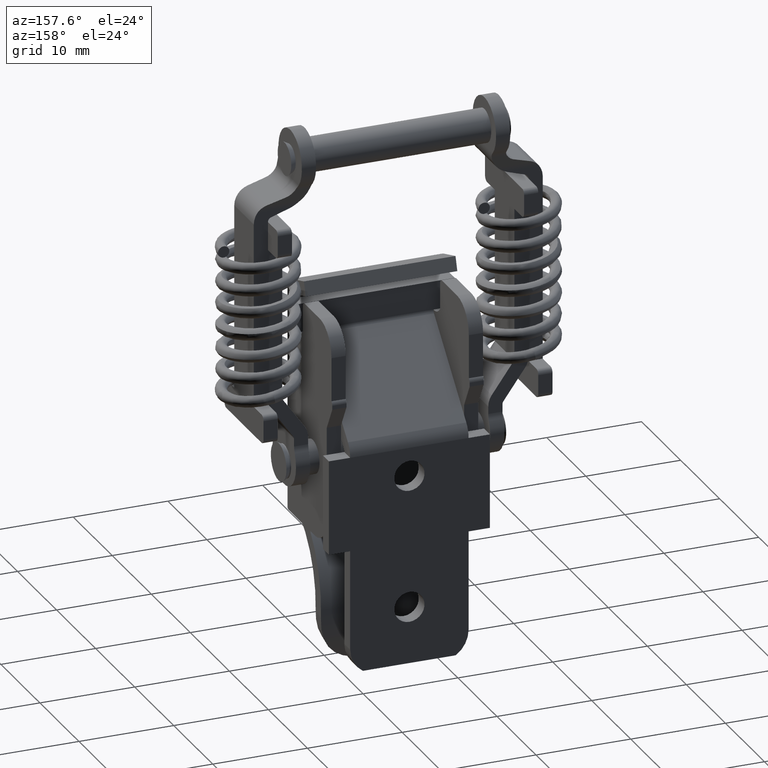
[diagram: clean part render]
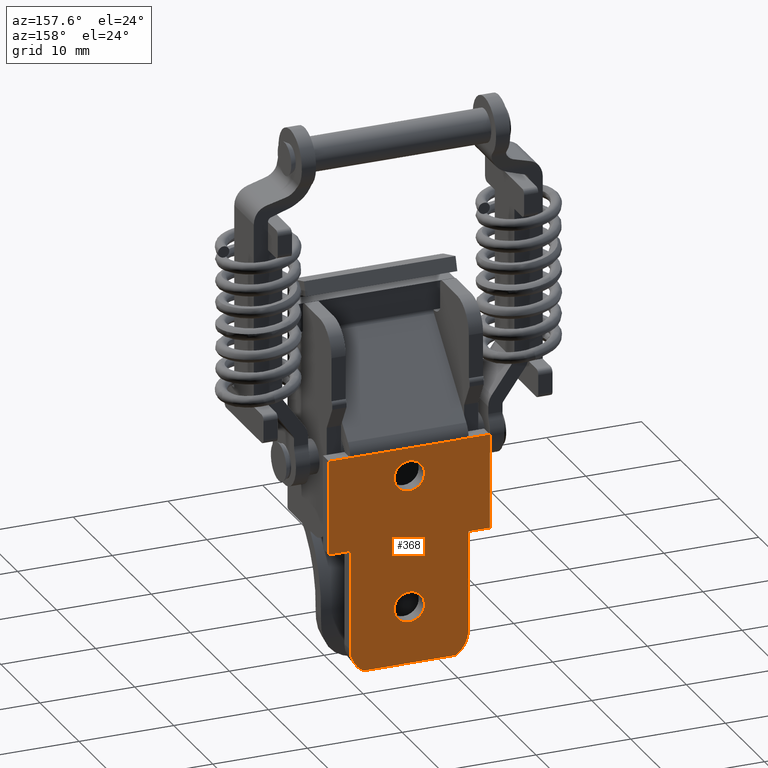
[diagram: same view with one face highlighted and labeled with its STEP entity id]
A machine part, auxiliary view. The second image highlights one B-rep face of the part: STEP entity #368.
In plain terms, the highlighted planar face has unit normal (0, 1, 0).
Its self-contained STEP definition (entity closure, byte-faithful):
#368=ADVANCED_FACE('',(#1823,#1824,#1825),#1822,.T.);
#1822=PLANE('',#5739);
#1823=FACE_OUTER_BOUND('',#5740,.T.);
#1824=FACE_BOUND('',#5741,.T.);
#1825=FACE_BOUND('',#5742,.T.);
#5736=CARTESIAN_POINT('',(-3.95000000000E+00,1.50000000000E+00,-2.29839975710E+00));
#5737=DIRECTION('',(0.00000000000E+00,1.00000000000E+00,0.00000000000E+00));
#5738=DIRECTION('',(0.00000000000E+00,0.00000000000E+00,1.00000000000E+00));
#5739=AXIS2_PLACEMENT_3D('',#5736,#5737,#5738);
#5740=EDGE_LOOP('',(#6934,#6935,#6936,#6937,#6938,#6939,#6940,#6941,#6942,#6943,#6944,#6945));
#5741=EDGE_LOOP('',(#6946,#6947));
#5742=EDGE_LOOP('',(#6948,#6949));
#6934=ORIENTED_EDGE('',*,*,#7761,.T.);
#6935=ORIENTED_EDGE('',*,*,#7762,.T.);
#6936=ORIENTED_EDGE('',*,*,#7763,.F.);
#6937=ORIENTED_EDGE('',*,*,#7750,.F.);
#6938=ORIENTED_EDGE('',*,*,#7764,.F.);
#6939=ORIENTED_EDGE('',*,*,#7765,.T.);
#6940=ORIENTED_EDGE('',*,*,#7748,.T.);
#6941=ORIENTED_EDGE('',*,*,#7756,.T.);
#6942=ORIENTED_EDGE('',*,*,#7766,.T.);
#6943=ORIENTED_EDGE('',*,*,#7767,.T.);
#6944=ORIENTED_EDGE('',*,*,#7768,.T.);
#6945=ORIENTED_EDGE('',*,*,#7769,.F.);
#6946=ORIENTED_EDGE('',*,*,#7770,.T.);
#6947=ORIENTED_EDGE('',*,*,#7771,.T.);
#6948=ORIENTED_EDGE('',*,*,#7772,.T.);
#6949=ORIENTED_EDGE('',*,*,#7773,.T.);
#7748=EDGE_CURVE('',#10393,#10386,#10394,.T.);
#7750=EDGE_CURVE('',#10406,#10407,#10408,.T.);
#7756=EDGE_CURVE('',#10386,#10441,#10448,.T.);
#7761=EDGE_CURVE('',#10482,#10483,#10484,.T.);
#7762=EDGE_CURVE('',#10483,#10490,#10491,.T.);
#7763=EDGE_CURVE('',#10407,#10490,#10497,.T.);
#7764=EDGE_CURVE('',#10503,#10406,#10504,.T.);
#7765=EDGE_CURVE('',#10503,#10393,#10510,.T.);
#7766=EDGE_CURVE('',#10441,#10516,#10517,.T.);
#7767=EDGE_CURVE('',#10516,#10523,#10524,.T.);
#7768=EDGE_CURVE('',#10523,#10530,#10531,.T.);
#7769=EDGE_CURVE('',#10482,#10530,#10537,.T.);
#7770=EDGE_CURVE('',#10543,#10544,#10545,.T.);
#7771=EDGE_CURVE('',#10544,#10543,#10551,.T.);
#7772=EDGE_CURVE('',#10557,#10558,#10559,.T.);
#7773=EDGE_CURVE('',#10558,#10557,#10565,.T.);
#10386=VERTEX_POINT('',#13959);
#10393=VERTEX_POINT('',#13963);
#10394=LINE('',#13964,#13965);
#10406=VERTEX_POINT('',#13970);
#10407=VERTEX_POINT('',#13971);
#10408=LINE('',#13972,#13973);
#10441=VERTEX_POINT('',#13990);
#10448=LINE('',#13994,#13995);
#10482=VERTEX_POINT('',#14013);
#10483=VERTEX_POINT('',#14014);
#10484=LINE('',#14015,#14016);
#10490=VERTEX_POINT('',#14018);
#10491=LINE('',#14019,#14020);
#10497=CIRCLE('',#14025,3.00000000000E+00);
#10503=VERTEX_POINT('',#14026);
#10504=CIRCLE('',#14030,3.00000000000E+00);
#10510=LINE('',#14031,#14032);
#10516=VERTEX_POINT('',#14034);
#10517=LINE('',#14035,#14036);
#10523=VERTEX_POINT('',#14038);
#10524=LINE('',#14039,#14040);
#10530=VERTEX_POINT('',#14042);
#10531=LINE('',#14043,#14044);
#10537=LINE('',#14046,#14047);
#10543=VERTEX_POINT('',#14049);
#10544=VERTEX_POINT('',#14050);
#10545=CIRCLE('',#14054,1.60000000000E+00);
#10551=CIRCLE('',#14058,1.60000000000E+00);
#10557=VERTEX_POINT('',#14059);
#10558=VERTEX_POINT('',#14060);
#10559=CIRCLE('',#14064,1.60000000000E+00);
#10565=CIRCLE('',#14068,1.60000000000E+00);
#13959=CARTESIAN_POINT('',(-2.25000000000E+00,1.50000000000E+00,1.30000000000E+01));
#13963=CARTESIAN_POINT('',(0.00000000000E+00,1.50000000000E+00,1.30000000000E+01));
#13964=CARTESIAN_POINT('',(0.00000000000E+00,1.50000000000E+00,1.30000000000E+01));
#13965=VECTOR('',#13966,2.25000000000E+00);
#13966=DIRECTION('',(-1.00000000000E+00,0.00000000000E+00,0.00000000000E+00));
#13970=CARTESIAN_POINT('',(1.34168760482E+00,1.50000000000E+00,0.00000000000E+00));
#13971=CARTESIAN_POINT('',(1.11583123952E+01,1.50000000000E+00,0.00000000000E+00));
#13972=CARTESIAN_POINT('',(1.34168760482E+00,1.50000000000E+00,0.00000000000E+00));
#13973=VECTOR('',#13974,9.81662479036E+00);
#13974=DIRECTION('',(1.00000000000E+00,0.00000000000E+00,0.00000000000E+00));
#13990=CARTESIAN_POINT('',(-2.25000000000E+00,1.50000000000E+00,2.29839975710E+01));
#13994=CARTESIAN_POINT('',(-2.25000000000E+00,1.50000000000E+00,1.30000000000E+01));
#13995=VECTOR('',#13996,9.98399757100E+00);
#13996=DIRECTION('',(0.00000000000E+00,0.00000000000E+00,1.00000000000E+00));
#14013=CARTESIAN_POINT('',(1.47500000000E+01,1.50000000000E+00,1.30000000000E+01));
#14014=CARTESIAN_POINT('',(1.25000000000E+01,1.50000000000E+00,1.30000000000E+01));
#14015=CARTESIAN_POINT('',(1.47500000000E+01,1.50000000000E+00,1.30000000000E+01));
#14016=VECTOR('',#14017,2.25000000000E+00);
#14017=DIRECTION('',(-1.00000000000E+00,0.00000000000E+00,0.00000000000E+00));
#14018=CARTESIAN_POINT('',(1.25000000000E+01,1.50000000000E+00,2.50000000000E+00));
#14019=CARTESIAN_POINT('',(1.25000000000E+01,1.50000000000E+00,1.30000000000E+01));
#14020=VECTOR('',#14021,1.05000000000E+01);
#14021=DIRECTION('',(0.00000000000E+00,0.00000000000E+00,-1.00000000000E+00));
#14022=CARTESIAN_POINT('',(9.50000000000E+00,1.50000000000E+00,2.50000000000E+00));
#14023=DIRECTION('',(-3.26082622244E-17,-1.00000000000E+00,-2.16298741728E-17));
#14024=DIRECTION('',(-5.52770798393E-01,2.77333911992E-32,8.33333333333E-01));
#14025=AXIS2_PLACEMENT_3D('',#14022,#14023,#14024);
#14026=CARTESIAN_POINT('',(8.88178419700E-16,1.50000000000E+00,2.50000000000E+00));
#14027=CARTESIAN_POINT('',(3.00000000000E+00,1.50000000000E+00,2.50000000000E+00));
#14028=DIRECTION('',(5.27107577572E-31,-1.00000000000E+00,3.91299146693E-17));
#14029=DIRECTION('',(1.00000000000E+00,-7.88230386183E-46,-1.34707060321E-14));
#14030=AXIS2_PLACEMENT_3D('',#14027,#14028,#14029);
#14031=CARTESIAN_POINT('',(0.00000000000E+00,1.50000000000E+00,2.50000000000E+00));
#14032=VECTOR('',#14033,1.05000000000E+01);
#14033=DIRECTION('',(0.00000000000E+00,0.00000000000E+00,1.00000000000E+00));
#14034=CARTESIAN_POINT('',(0.00000000000E+00,1.50000000000E+00,2.29839975710E+01));
#14035=CARTESIAN_POINT('',(-2.25000000000E+00,1.50000000000E+00,2.29839975709E+01));
#14036=VECTOR('',#14037,2.25000000000E+00);
#14037=DIRECTION('',(1.00000000000E+00,0.00000000000E+00,0.00000000000E+00));
#14038=CARTESIAN_POINT('',(1.25000000000E+01,1.50000000000E+00,2.29839975710E+01));
#14039=CARTESIAN_POINT('',(0.00000000000E+00,1.50000000000E+00,2.29839975709E+01));
#14040=VECTOR('',#14041,1.25000000000E+01);
#14041=DIRECTION('',(1.00000000000E+00,0.00000000000E+00,0.00000000000E+00));
#14042=CARTESIAN_POINT('',(1.47500000000E+01,1.50000000000E+00,2.29839975710E+01));
#14043=CARTESIAN_POINT('',(1.25000000000E+01,1.50000000000E+00,2.29839975710E+01));
#14044=VECTOR('',#14045,2.25000000000E+00);
#14045=DIRECTION('',(1.00000000000E+00,0.00000000000E+00,0.00000000000E+00));
#14046=CARTESIAN_POINT('',(1.47500000000E+01,1.50000000000E+00,1.30000000000E+01));
#14047=VECTOR('',#14048,9.98399757100E+00);
#14048=DIRECTION('',(0.00000000000E+00,0.00000000000E+00,1.00000000000E+00));
#14049=CARTESIAN_POINT('',(6.25000000000E+00,1.50000000000E+00,1.84000000000E+01));
#14050=CARTESIAN_POINT('',(6.25000000000E+00,1.50000000000E+00,2.16000000000E+01));
#14051=CARTESIAN_POINT('',(6.25000000000E+00,1.50000000000E+00,2.00000000000E+01));
#14052=DIRECTION('',(-4.90653893339E-17,-1.00000000000E+00,-2.72367624753E-32));
#14053=DIRECTION('',(-7.43849426499E-15,3.92209379645E-31,-1.00000000000E+00));
#14054=AXIS2_PLACEMENT_3D('',#14051,#14052,#14053);
#14055=CARTESIAN_POINT('',(6.25000000000E+00,1.50000000000E+00,2.00000000000E+01));
#14056=DIRECTION('',(-4.90653893339E-17,-1.00000000000E+00,-2.72367624753E-32));
#14057=DIRECTION('',(-7.43849426499E-15,3.92209379645E-31,-1.00000000000E+00));
#14058=AXIS2_PLACEMENT_3D('',#14055,#14056,#14057);
#14059=CARTESIAN_POINT('',(6.25000000000E+00,1.50000000000E+00,4.40000000000E+00));
#14060=CARTESIAN_POINT('',(6.25000000000E+00,1.50000000000E+00,7.60000000000E+00));
#14061=CARTESIAN_POINT('',(6.25000000000E+00,1.50000000000E+00,6.00000000000E+00));
#14062=DIRECTION('',(-4.90653893339E-17,-1.00000000000E+00,3.26841149704E-31));
#14063=DIRECTION('',(4.44089209850E-16,-3.48630559684E-31,-1.00000000000E+00));
#14064=AXIS2_PLACEMENT_3D('',#14061,#14062,#14063);
#14065=CARTESIAN_POINT('',(6.25000000000E+00,1.50000000000E+00,6.00000000000E+00));
#14066=DIRECTION('',(-4.90653893339E-17,-1.00000000000E+00,3.26841149704E-31));
#14067=DIRECTION('',(4.44089209850E-16,-3.48630559684E-31,-1.00000000000E+00));
#14068=AXIS2_PLACEMENT_3D('',#14065,#14066,#14067);